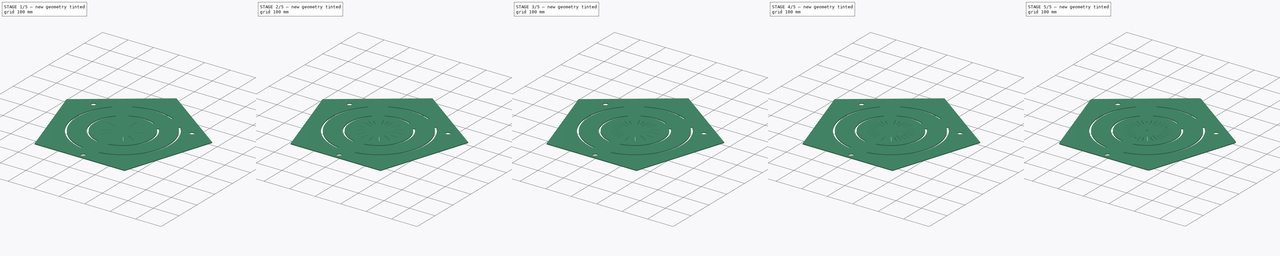
[diagram: build sequence overview — one tinted view per stage of 5, left to right]
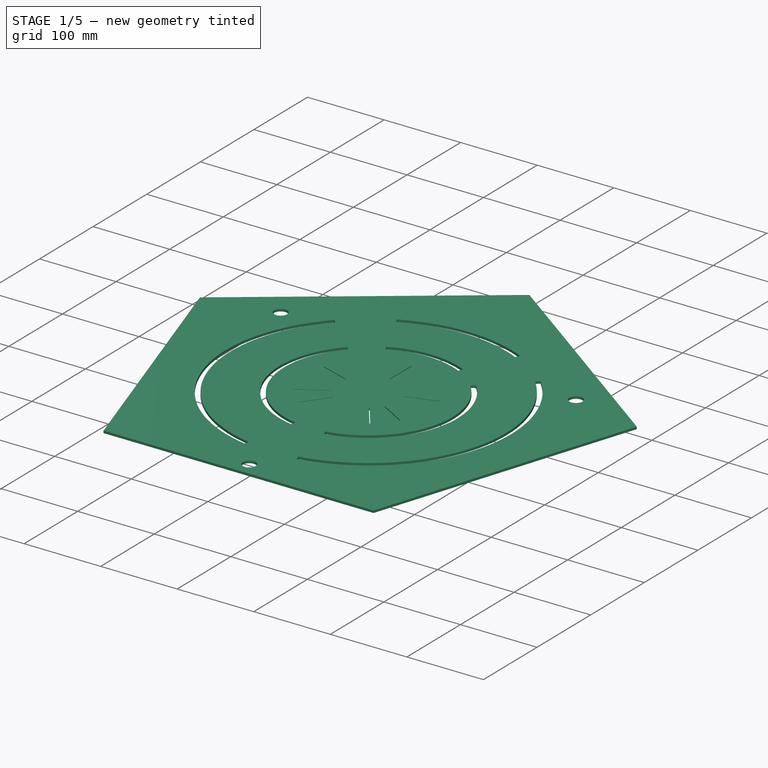
[diagram: stage 1 of 5 — iso view after this stage's code; geometry added in this stage tinted green]
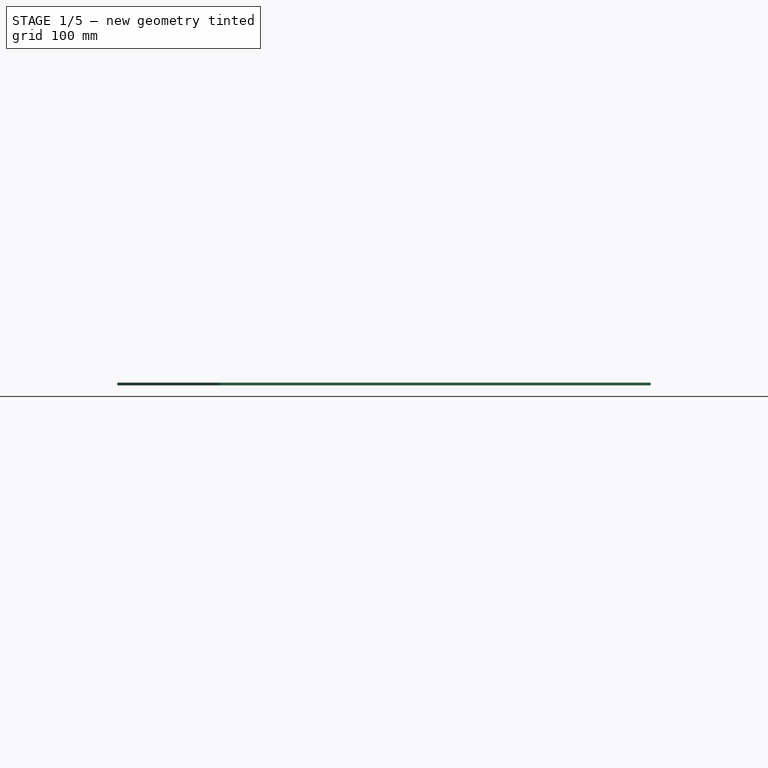
[diagram: stage 1 of 5 — front view after this stage's code; geometry added in this stage tinted green]
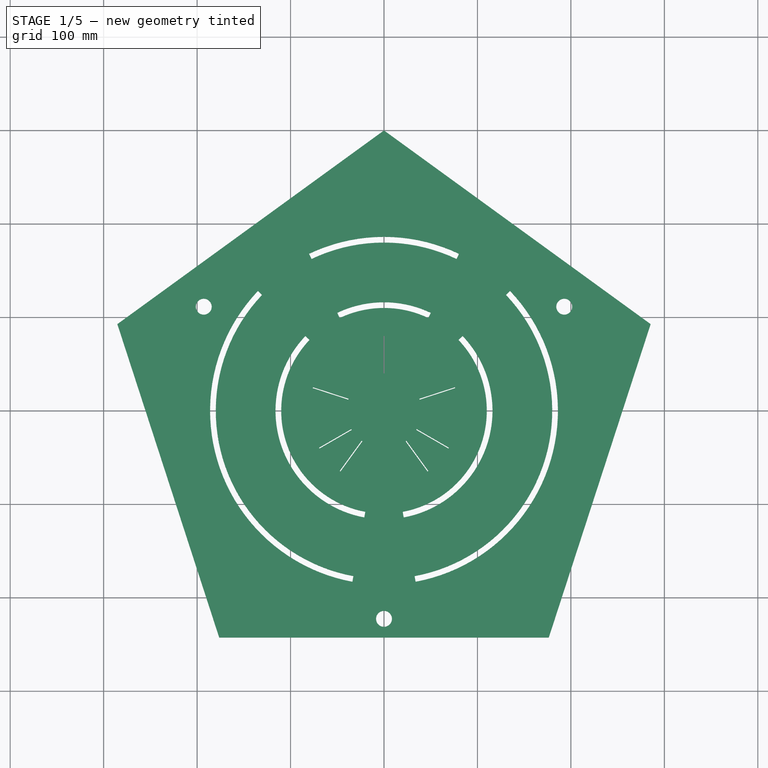
[diagram: stage 1 of 5 — top view after this stage's code; geometry added in this stage tinted green]
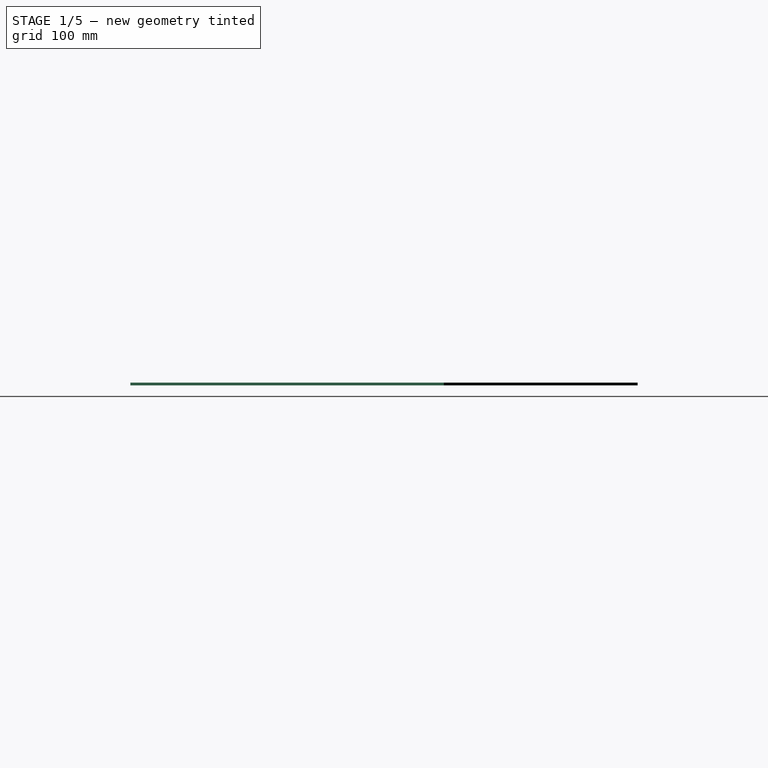
[diagram: stage 1 of 5 — right view after this stage's code; geometry added in this stage tinted green]
FCSTD DOCUMENT  (FreeCAD 0.19R24291 (Git))
Label: PlatformV3_wide_track
License: All rights reserved
LicenseURL: http://en.wikipedia.org/wiki/All_rights_reserved
objects: PartDesign::PolarPattern×15, Sketcher::SketchObject×4, PartDesign::Pocket×2, PartDesign::Fillet×2, PartDesign::Pad×1, PartDesign::Hole×1, PartDesign::Body×1
note: 32 computed .brp shape members not serialized (recipe doc carries the construction recipe); baked Part::Feature solids carry a one-line shape summary decoded from their .brp

FEATURE [Sketcher::SketchObject] Sketch
  FullyConstrained = true
  MapMode = 5
  Support = -> [XY_Plane]
  sketch-geometry (99):
    g0: GeomPoint X=0 Y=300 Z=0
    g1: LineSegment StartX=0 StartY=300 StartZ=0 EndX=-285.317 EndY=92.7051 EndZ=0
    g2: LineSegment StartX=-285.317 StartY=92.7051 StartZ=0 EndX=-176.336 EndY=-242.705 EndZ=0
    g3: LineSegment StartX=-176.336 StartY=-242.705 StartZ=0 EndX=176.336 EndY=-242.705 EndZ=0
    g4: LineSegment StartX=176.336 StartY=-242.705 StartZ=0 EndX=285.317 EndY=92.7051 EndZ=0
    g5: LineSegment StartX=285.317 StartY=92.7051 StartZ=0 EndX=0 EndY=300 EndZ=0
    g6: Circle CenterX=0 CenterY=0 CenterZ=0 NormalX=0 NormalY=0 NormalZ=1 AngleXU=0 Radius=300
    g7: LineSegment StartX=0 StartY=0 StartZ=0 EndX=-176.336 EndY=-242.705 EndZ=0
    g8: LineSegment StartX=0 StartY=0 StartZ=0 EndX=176.336 EndY=-242.705 EndZ=0
    g9: LineSegment StartX=0 StartY=0 StartZ=0 EndX=285.317 EndY=92.7051 EndZ=0
    g10: LineSegment StartX=0 StartY=0 StartZ=0 EndX=-285.317 EndY=92.7051 EndZ=0
    g11: LineSegment StartX=0 StartY=0 StartZ=0 EndX=0 EndY=300 EndZ=0
    g12: LineSegment StartX=0 StartY=0 StartZ=0 EndX=259.808 EndY=-150 EndZ=0
    g13: LineSegment StartX=0 StartY=0 StartZ=0 EndX=-259.808 EndY=-150 EndZ=0
    g14: LineSegment StartX=0 StartY=0 StartZ=0 EndX=0 EndY=-242.705 EndZ=0
    g15: LineSegment StartX=20 StartY=299.333 StartZ=0 EndX=20 EndY=-299.333 EndZ=0
    g16: LineSegment StartX=-20 StartY=299.333 StartZ=0 EndX=-20 EndY=-299.333 EndZ=0
    g17: GeomPoint X=0 Y=-222.705 Z=0
    g18: Circle CenterX=0 CenterY=-222.705 CenterZ=0 NormalX=0 NormalY=0 NormalZ=1 AngleXU=0 Radius=8.5
    g19: LineSegment StartX=0 StartY=-222.705 StartZ=0 EndX=192.868 EndY=111.353 EndZ=0
    g20: LineSegment StartX=192.868 StartY=111.353 StartZ=0 EndX=-192.868 EndY=111.353 EndZ=0
    g21: LineSegment StartX=-192.868 StartY=111.353 StartZ=0 EndX=0 EndY=-222.705 EndZ=0
    g22: Circle CenterX=0 CenterY=0 CenterZ=0 NormalX=0 NormalY=0 NormalZ=1 AngleXU=0 Radius=222.705
    g23: Circle CenterX=-192.868 CenterY=111.353 CenterZ=0 NormalX=0 NormalY=0 NormalZ=1 AngleXU=0 Radius=8.5
    g24: Circle CenterX=192.868 CenterY=111.353 CenterZ=0 NormalX=0 NormalY=0 NormalZ=1 AngleXU=0 Radius=8.5
    g25: Circle CenterX=0 CenterY=0 CenterZ=0 NormalX=0 NormalY=0 NormalZ=1 AngleXU=0 Radius=186.1
    g26: Circle CenterX=0 CenterY=0 CenterZ=0 NormalX=0 NormalY=0 NormalZ=1 AngleXU=0 Radius=180
    g27: Circle CenterX=0 CenterY=0 CenterZ=0 NormalX=0 NormalY=0 NormalZ=1 AngleXU=0 Radius=116.1
    g28: Circle CenterX=0 CenterY=0 CenterZ=0 NormalX=0 NormalY=0 NormalZ=1 AngleXU=0 Radius=110
    g29: LineSegment StartX=0 StartY=0 StartZ=0 EndX=-259.808 EndY=150 EndZ=0
    g30: LineSegment StartX=0 StartY=0 StartZ=0 EndX=259.808 EndY=150 EndZ=0
    g31: LineSegment StartX=-249.236 StartY=166.978 StartZ=0 EndX=269.225 EndY=-132.356 EndZ=0
    g32: LineSegment StartX=-269.225 StartY=132.356 StartZ=0 EndX=249.236 EndY=-166.978 EndZ=0
    g33: LineSegment StartX=249.236 StartY=166.978 StartZ=0 EndX=-269.225 EndY=-132.356 EndZ=0
    g34: LineSegment StartX=269.225 StartY=132.356 StartZ=0 EndX=-249.236 EndY=-166.978 EndZ=0
    g35: Circle CenterX=0 CenterY=0 CenterZ=0 NormalX=0 NormalY=0 NormalZ=1 AngleXU=0 Radius=242.705
    g36: LineSegment StartX=0 StartY=0 StartZ=0 EndX=-176.336 EndY=242.705 EndZ=0
    g37: LineSegment StartX=-192.115 StartY=230.417 StartZ=0 EndX=159.772 EndY=-253.915 EndZ=0
    g38: LineSegment StartX=-159.772 StartY=253.915 StartZ=0 EndX=192.115 EndY=-230.417 EndZ=0
    g39: Circle CenterX=-192.868 CenterY=111.353 CenterZ=0 NormalX=0 NormalY=0 NormalZ=1 AngleXU=0 Radius=3.05
    g40: Circle CenterX=192.868 CenterY=111.353 CenterZ=0 NormalX=0 NormalY=0 NormalZ=1 AngleXU=0 Radius=3.05
    g41: Circle CenterX=0 CenterY=-222.705 CenterZ=0 NormalX=0 NormalY=0 NormalZ=1 AngleXU=0 Radius=3.05
    g42: GeomPoint X=-79.7513 Y=75.7611 Z=0
    g43: LineSegment StartX=0 StartY=0 StartZ=0 EndX=-217.503 EndY=206.621 EndZ=0
    g44: LineSegment StartX=0 StartY=0 StartZ=0 EndX=-129.296 EndY=270.707 EndZ=0
    g45: GeomPoint X=-47.4086 Y=99.2594 Z=0
    g46: GeomPoint X=-20 Y=-108.167 Z=0
    g47: GeomPoint X=20 Y=-108.167 Z=0
    g48: LineSegment StartX=0 StartY=0 StartZ=0 EndX=-54.5455 EndY=-295 EndZ=0
    g49: LineSegment StartX=0 StartY=0 StartZ=0 EndX=54.5455 EndY=-295 EndZ=0
    g50: LineSegment StartX=0 StartY=0 StartZ=0 EndX=176.336 EndY=242.705 EndZ=0
    g51: LineSegment StartX=-192.115 StartY=-230.417 StartZ=0 EndX=159.772 EndY=253.915 EndZ=0
    g52: LineSegment StartX=-159.772 StartY=-253.915 StartZ=0 EndX=192.115 EndY=230.417 EndZ=0
    g53: GeomPoint X=47.4086 Y=99.2594 Z=0
    g54: GeomPoint X=79.7513 Y=75.7611 Z=0
    g55: LineSegment StartX=0 StartY=0 StartZ=0 EndX=129.296 EndY=270.707 EndZ=0
    g56: LineSegment StartX=0 StartY=0 StartZ=0 EndX=217.503 EndY=206.621 EndZ=0
    g57: GeomPoint X=-21.1091 Y=-114.165 Z=0
    g58: GeomPoint X=-84.1738 Y=79.9624 Z=0
    g59: ArcOfCircle CenterX=0 CenterY=0 CenterZ=0 NormalX=0 NormalY=0 NormalZ=1 AngleXU=0 Radius=110 StartAngle=2.38185 EndAngle=4.52955
    g60: ArcOfCircle CenterX=0 CenterY=0 CenterZ=0 NormalX=0 NormalY=0 NormalZ=1 AngleXU=0 Radius=116.1 StartAngle=2.38185 EndAngle=4.52955
    g61: LineSegment StartX=-84.1738 StartY=79.9624 StartZ=0 EndX=-79.7513 EndY=75.7611 EndZ=0
    g62: LineSegment StartX=-20 StartY=-108.167 StartZ=0 EndX=-21.1091 EndY=-114.165 EndZ=0
    g63: GeomPoint X=-32.7273 Y=-177 Z=0
    g64: GeomPoint X=-33.8364 Y=-182.998 Z=0
    g65: GeomPoint X=-134.925 Y=128.174 Z=0
    g66: GeomPoint X=-130.502 Y=123.973 Z=0
    g67: ArcOfCircle CenterX=0 CenterY=0 CenterZ=0 NormalX=0 NormalY=0 NormalZ=1 AngleXU=0 Radius=186.1 StartAngle=2.38185 EndAngle=4.52955
    g68: LineSegment StartX=-33.8364 StartY=-182.998 StartZ=0 EndX=-32.7273 EndY=-177 EndZ=0
    g69: ArcOfCircle CenterX=0 CenterY=0 CenterZ=0 NormalX=0 NormalY=0 NormalZ=1 AngleXU=0 Radius=180 StartAngle=2.38185 EndAngle=4.52955
    g70: LineSegment StartX=-134.925 StartY=128.174 StartZ=0 EndX=-130.502 EndY=123.973 EndZ=0
    g71: GeomPoint X=-50.0376 Y=104.764 Z=0
    g72: ArcOfCircle CenterX=0 CenterY=0 CenterZ=0 NormalX=0 NormalY=0 NormalZ=1 AngleXU=0 Radius=110 StartAngle=1.12521 EndAngle=2.01638
    g73: LineSegment StartX=-47.4086 StartY=99.2594 StartZ=0 EndX=-50.0376 EndY=104.764 EndZ=0
    g74: GeomPoint X=50.0376 Y=104.764 Z=0
    g75: ArcOfCircle CenterX=0 CenterY=0 CenterZ=0 NormalX=0 NormalY=0 NormalZ=1 AngleXU=0 Radius=116.1 StartAngle=1.12521 EndAngle=2.01638
    g76: LineSegment StartX=50.0376 StartY=104.764 StartZ=0 EndX=47.4086 EndY=99.2594 EndZ=0
    g77: GeomPoint X=-80.2067 Y=167.929 Z=0
    g78: GeomPoint X=80.2067 Y=167.929 Z=0
    g79: ArcOfCircle CenterX=0 CenterY=0 CenterZ=0 NormalX=0 NormalY=0 NormalZ=1 AngleXU=0 Radius=186.1 StartAngle=1.12521 EndAngle=2.01638
    g80: GeomPoint X=-77.5776 Y=162.424 Z=0
    g81: GeomPoint X=77.5776 Y=162.424 Z=0
    g82: ArcOfCircle CenterX=0 CenterY=0 CenterZ=0 NormalX=0 NormalY=0 NormalZ=1 AngleXU=0 Radius=180 StartAngle=1.12521 EndAngle=2.01638
    g83: LineSegment StartX=-77.5776 StartY=162.424 StartZ=0 EndX=-80.2067 EndY=167.929 EndZ=0
    g84: LineSegment StartX=77.5776 StartY=162.424 StartZ=0 EndX=80.2067 EndY=167.929 EndZ=0
    g85: GeomPoint X=21.1091 Y=-114.165 Z=0
    g86: GeomPoint X=84.1738 Y=79.9624 Z=0
    g87: ArcOfCircle CenterX=0 CenterY=0 CenterZ=0 NormalX=0 NormalY=0 NormalZ=1 AngleXU=0 Radius=110 StartAngle=4.89522 EndAngle=7.04293
    g88: ArcOfCircle CenterX=0 CenterY=0 CenterZ=0 NormalX=0 NormalY=0 NormalZ=1 AngleXU=0 Radius=116.1 StartAngle=4.89522 EndAngle=7.04293
    g89: LineSegment StartX=20 StartY=-108.167 StartZ=0 EndX=21.1091 EndY=-114.165 EndZ=0
    g90: LineSegment StartX=79.7513 StartY=75.7611 StartZ=0 EndX=84.1738 EndY=79.9624 EndZ=0
    g91: GeomPoint X=32.7273 Y=-177 Z=0
    g92: GeomPoint X=33.8364 Y=-182.998 Z=0
    g93: GeomPoint X=130.502 Y=123.973 Z=0
    g94: GeomPoint X=134.925 Y=128.174 Z=0
    g95: ArcOfCircle CenterX=0 CenterY=0 CenterZ=0 NormalX=0 NormalY=0 NormalZ=1 AngleXU=0 Radius=186.1 StartAngle=4.89522 EndAngle=7.04293
    g96: ArcOfCircle CenterX=0 CenterY=0 CenterZ=0 NormalX=0 NormalY=0 NormalZ=1 AngleXU=0 Radius=180 StartAngle=4.89522 EndAngle=7.04293
    g97: LineSegment StartX=32.7273 StartY=-177 StartZ=0 EndX=33.8364 EndY=-182.998 EndZ=0
    g98: LineSegment StartX=130.502 StartY=123.973 StartZ=0 EndX=134.925 EndY=128.174 EndZ=0
  constraints (242):
    c: PointOnObject(g0,g-2)
    c: DistanceY(g-1,g0) = 300
    c: Coincident(g1,g2)
    c: Coincident(g2,g3)
    c: Coincident(g3,g4)
    c: Coincident(g4,g5)
    c: Coincident(g5,g1)
    c: Equal(g1, g2-g5) x4
    c: PointOnObject(g1,g6)
    c: PointOnObject(g2,g6)
    c: PointOnObject(g3,g6)
    c: PointOnObject(g4,g6)
    c: PointOnObject(g5,g6)
    c: Coincident(g6,g-1)
    c: Coincident(g5,g0)
    c: Coincident(g7,g-1)
    c: Coincident(g7,g2)
    c: Coincident(g8,g-1)
    c: Coincident(g8,g3)
    c: Coincident(g9,g-1)
    c: Coincident(g9,g4)
    c: Coincident(g10,g-1)
    c: Coincident(g10,g1)
    c: Coincident(g11,g-1)
    c: Coincident(g11,g1)
    c: Coincident(g12,g-1)
    c: PointOnObject(g12,g6)
    c: Coincident(g13,g-1)
    c: PointOnObject(g13,g6)
    c: Angle(g12,g11) = 2.0944
    c: Angle(g11,g13) = 2.0944
    c: Coincident(g14,g-1)
    c: PointOnObject(g14,g3)
    c: Vertical(g14)
    c: PointOnObject(g15,g6)
    c: PointOnObject(g15,g6)
    c: Vertical(g15)
    c: PointOnObject(g16,g6)
    c: PointOnObject(g16,g6)
    c: Vertical(g16)
    c: Distance(g14,g16) = 20
    c: Distance(g14,g15) = 20
    c: PointOnObject(g17,g14)
    c: Distance(g17,g14) = 20
    c: Coincident(g18,g17)
    c: Diameter(g18) = 17
    c: Coincident(g19,g20)
    c: Coincident(g20,g21)
    c: Coincident(g21,g19)
    c: Equal(g19,g20)
    c: Equal(g19,g21)
    c: PointOnObject(g19,g22)
    c: PointOnObject(g20,g22)
    c: PointOnObject(g21,g22)
    c: Coincident(g22,g-1)
    c: Coincident(g21,g18)
    c: Coincident(g23,g20)
    c: Coincident(g24,g19)
    c: Diameter(g23) = 17
    c: Diameter(g24) = 17
    c: Coincident(g25,g-1)
    c: Coincident(g26,g-1)
    c: Coincident(g27,g-1)
    c: Coincident(g28,g-1)
    c: Diameter(g25) = 372.2
    c: Diameter(g26) = 360
    c: Diameter(g27) = 232.2
    c: Diameter(g28) = 220
    c: Coincident(g29,g-1)
    c: PointOnObject(g29,g6)
    c: Coincident(g30,g-1)
    c: PointOnObject(g30,g6)
    c: Angle(g30,g11) = 1.0472
    c: Angle(g11,g29) = 1.0472
    c: PointOnObject(g31,g6)
    c: PointOnObject(g31,g6)
    c: PointOnObject(g32,g6)
    c: PointOnObject(g32,g6)
    c: Parallel(g29,g32)
    c: Parallel(g29,g31)
    c: Distance(g29,g31) = 20
    c: Distance(g29,g32) = 20
    c: PointOnObject(g33,g6)
    c: PointOnObject(g33,g6)
    c: PointOnObject(g34,g6)
    c: PointOnObject(g34,g6)
    c: Parallel(g13,g33)
    c: Parallel(g13,g34)
    c: Distance(g13,g33) = 20
    c: Distance(g13,g34) = 20
    c: Coincident(g35,g-1)
    c: Tangent(g35,g1)
    c: Coincident(g36,g-1)
    c: PointOnObject(g36,g6)
    c: Angle(g36,g10) = 0.628319
    c: PointOnObject(g37,g6)
    c: PointOnObject(g37,g6)
    c: Parallel(g36,g37)
    c: Distance(g36,g37) = 20
    c: PointOnObject(g38,g6)
    c: PointOnObject(g38,g6)
    c: Parallel(g36,g38)
    c: Distance(g38,g36) = 20
    c: Coincident(g39,g23)
    c: Diameter(g39) = 6.1
    c: Coincident(g40,g24)
    c: Diameter(g40) = 6.1
    c: Coincident(g41,g18)
    c: Diameter(g41) = 6.1
    c: PointOnObject(g42,g28)
    c: PointOnObject(g42,g37)
    c: Coincident(g43,g-1)
    c: PointOnObject(g43,g6)
    c: PointOnObject(g42,g43)
    c: Coincident(g44,g-1)
    c: PointOnObject(g44,g6)
    c: PointOnObject(g45,g28)
    c: PointOnObject(g45,g38)
    c: PointOnObject(g45,g44)
    c: PointOnObject(g47,g28)
    c: PointOnObject(g46,g16)
    c: PointOnObject(g47,g15)
    c: Coincident(g48,g-1)
    c: PointOnObject(g48,g6)
    c: PointOnObject(g46,g48)
    c: Coincident(g49,g-1)
    c: PointOnObject(g49,g6)
    c: PointOnObject(g47,g49)
    c: Coincident(g50,g-1)
    c: PointOnObject(g50,g6)
    c: Angle(g50,g11) = 0.628319
    c: PointOnObject(g51,g6)
    c: PointOnObject(g51,g6)
    c: Parallel(g50,g51)
    c: Distance(g50,g51) = 20
    c: PointOnObject(g52,g6)
    c: PointOnObject(g52,g6)
    c: Parallel(g52,g50)
    c: Distance(g52,g50) = 20
    c: PointOnObject(g53,g28)
    c: PointOnObject(g54,g28)
    c: PointOnObject(g53,g51)
    c: PointOnObject(g54,g52)
    c: Coincident(g55,g-1)
    c: PointOnObject(g55,g6)
    c: Coincident(g56,g-1)
    c: PointOnObject(g56,g6)
    c: PointOnObject(g53,g55)
    c: PointOnObject(g54,g56)
    c: PointOnObject(g57,g27)
    c: PointOnObject(g57,g48)
    c: PointOnObject(g58,g43)
    c: Coincident(g59,g-1)
    c: Coincident(g59,g42)
    c: Coincident(g59,g46)
    c: Coincident(g60,g59)
    c: Coincident(g60,g57)
    c: Coincident(g60,g58)
    c: Coincident(g61,g60)
    c: Coincident(g61,g59)
    c: Coincident(g62,g59)
    c: Coincident(g62,g60)
    c: PointOnObject(g63,g26)
    c: PointOnObject(g64,g25)
    c: PointOnObject(g63,g48)
    c: PointOnObject(g64,g48)
    c: PointOnObject(g65,g43)
    c: Coincident(g67,g59)
    c: Coincident(g67,g65)
    c: Coincident(g67,g64)
    c: Coincident(g68,g67)
    c: Coincident(g68,g63)
    c: Coincident(g69,g59)
    c: Coincident(g69,g66)
    c: Coincident(g69,g68)
    c: PointOnObject(g69,g43)
    c: Coincident(g70,g67)
    c: Coincident(g70,g69)
    c: PointOnObject(g71,g27)
    c: PointOnObject(g71,g44)
    c: Coincident(g72,g59)
    c: Coincident(g72,g45)
    c: PointOnObject(g72,g51)
    c: Coincident(g73,g72)
    c: Coincident(g73,g71)
    c: PointOnObject(g74,g27)
    c: PointOnObject(g74,g55)
    c: Coincident(g75,g59)
    c: Coincident(g75,g73)
    c: PointOnObject(g75,g55)
    c: Coincident(g76,g75)
    c: Coincident(g76,g72)
    c: PointOnObject(g77,g25)
    c: PointOnObject(g78,g25)
    c: PointOnObject(g77,g44)
    c: PointOnObject(g78,g55)
    c: Coincident(g79,g59)
    c: PointOnObject(g79,g55)
    c: PointOnObject(g79,g44)
    c: PointOnObject(g79,g25)
    c: PointOnObject(g80,g26)
    c: PointOnObject(g81,g26)
    c: PointOnObject(g80,g44)
    c: PointOnObject(g81,g55)
    c: Coincident(g82,g59)
    c: Coincident(g82,g80)
    c: PointOnObject(g82,g55)
    c: Coincident(g83,g82)
    c: Coincident(g83,g79)
    c: Coincident(g84,g82)
    c: Coincident(g84,g79)
    c: PointOnObject(g85,g27)
    c: PointOnObject(g85,g49)
    c: PointOnObject(g86,g27)
    c: PointOnObject(g86,g56)
    c: Coincident(g87,g59)
    c: Coincident(g87,g47)
    c: PointOnObject(g87,g52)
    c: Coincident(g88,g59)
    c: Coincident(g88,g85)
    c: PointOnObject(g88,g56)
    c: Coincident(g89,g87)
    c: Coincident(g89,g88)
    c: Coincident(g90,g87)
    c: Coincident(g90,g88)
    c: PointOnObject(g91,g26)
    c: PointOnObject(g92,g25)
    c: PointOnObject(g91,g49)
    c: PointOnObject(g92,g49)
    c: PointOnObject(g94,g25)
    c: PointOnObject(g94,g56)
    c: Coincident(g95,g59)
    c: Coincident(g95,g92)
    c: PointOnObject(g95,g56)
    c: Coincident(g96,g59)
    c: Coincident(g96,g93)
    c: Coincident(g96,g91)
    c: Coincident(g97,g96)
    c: Coincident(g97,g95)
    c: PointOnObject(g96,g56)
    c: Coincident(g98,g96)
    c: Coincident(g98,g95)
FEATURE [PartDesign::Pad] Pad
  Direction = (1,1,1)
  Length = 3
  Length2 = 100
  Profile = -> Sketch
  Type = 0
FEATURE [Sketcher::SketchObject] Sketch001
  FullyConstrained = true
  MapMode = 5
  Placement = pos=(0,0,3) rot=(0,0,1;0rad)
  Support = -> [Pad]
  sketch-geometry (15):
    g0: Circle CenterX=0 CenterY=0 CenterZ=0 NormalX=0 NormalY=0 NormalZ=1 AngleXU=0 Radius=125
    g1: Circle CenterX=0 CenterY=0 CenterZ=0 NormalX=0 NormalY=0 NormalZ=1 AngleXU=0 Radius=70
    g2: Circle CenterX=0 CenterY=0 CenterZ=0 NormalX=0 NormalY=0 NormalZ=1 AngleXU=0 Radius=40
    g3: Circle CenterX=0 CenterY=0 CenterZ=0 NormalX=0 NormalY=0 NormalZ=1 AngleXU=0 Radius=80
    g4: Circle CenterX=0 CenterY=0 CenterZ=0 NormalX=0 NormalY=0 NormalZ=1 AngleXU=0 Radius=300
    g5: LineSegment StartX=-0.5 StartY=300 StartZ=0 EndX=-0.5 EndY=-300 EndZ=0
    g6: LineSegment StartX=0.5 StartY=300 StartZ=0 EndX=0.5 EndY=-300 EndZ=0
    g7: GeomPoint X=-0.5 Y=39.9969 Z=0
    g8: GeomPoint X=0.5 Y=39.9969 Z=0
    g9: GeomPoint X=-0.5 Y=79.9984 Z=0
    g10: GeomPoint X=0.5 Y=79.9984 Z=0
    g11: LineSegment StartX=-0.5 StartY=39.9969 StartZ=0 EndX=-0.5 EndY=79.9984 EndZ=0
    g12: LineSegment StartX=-0.5 StartY=79.9984 StartZ=0 EndX=0.5 EndY=79.9984 EndZ=0
    g13: LineSegment StartX=0.5 StartY=79.9984 StartZ=0 EndX=0.5 EndY=39.9969 EndZ=0
    g14: LineSegment StartX=0.5 StartY=39.9969 StartZ=0 EndX=-0.5 EndY=39.9969 EndZ=0
  constraints (34):
    c: Coincident(g0,g-1)
    c: Coincident(g1,g-1)
    c: Diameter(g0) = 250
    c: Diameter(g1) = 140
    c: Coincident(g2,g-1)
    c: Diameter(g2) = 80
    c: Coincident(g3,g-1)
    c: Diameter(g3) = 160
    c: Coincident(g4,g-1)
    c: Diameter(g4) = 600
    c: PointOnObject(g5,g4)
    c: PointOnObject(g5,g4)
    c: Vertical(g5)
    c: PointOnObject(g6,g4)
    c: PointOnObject(g6,g4)
    c: Vertical(g6)
    c: Distance(g-1,g5) = 0.5
    c: Distance(g-1,g6) = 0.5
    c: PointOnObject(g7,g2)
    c: PointOnObject(g8,g2)
    c: PointOnObject(g7,g5)
    c: PointOnObject(g8,g6)
    c: PointOnObject(g9,g3)
    c: PointOnObject(g10,g3)
    c: PointOnObject(g9,g5)
    c: PointOnObject(g10,g6)
    c: Coincident(g11,g7)
    c: Coincident(g11,g9)
    c: Coincident(g11,g12)
    c: Coincident(g12,g10)
    c: Coincident(g12,g13)
    c: Coincident(g13,g8)
    c: Coincident(g13,g14)
    c: Coincident(g14,g11)
FEATURE [PartDesign::Pocket] Pocket
  BaseFeature = -> Pad
  Length = 3
  Length2 = 100
  Profile = -> Sketch001
  Type = 0
FEATURE [PartDesign::PolarPattern] PolarPattern
  Angle = 360
  Axis = -> Sketch001 [N_Axis]
  BaseFeature = -> Pocket
  Occurrences = 5
  Originals = -> [Pocket]
FEATURE [PartDesign::PolarPattern] PolarPattern001
  Angle = 360
  Axis = -> Sketch001 [N_Axis]
  BaseFeature = -> PolarPattern
  Occurrences = 3
  Originals = -> [Pocket]
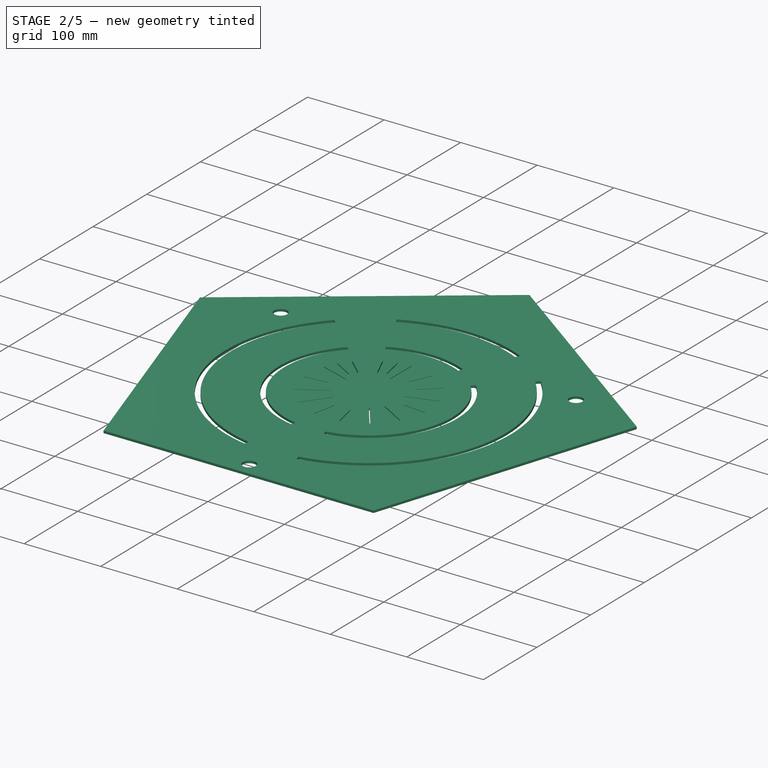
[diagram: stage 2 of 5 — iso view after this stage's code; geometry added in this stage tinted green]
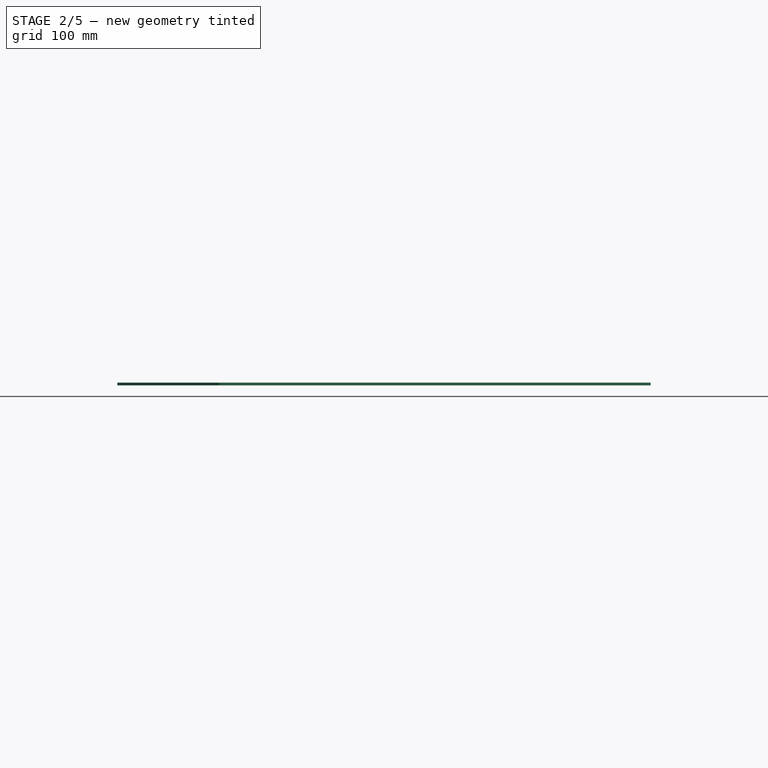
[diagram: stage 2 of 5 — front view after this stage's code; geometry added in this stage tinted green]
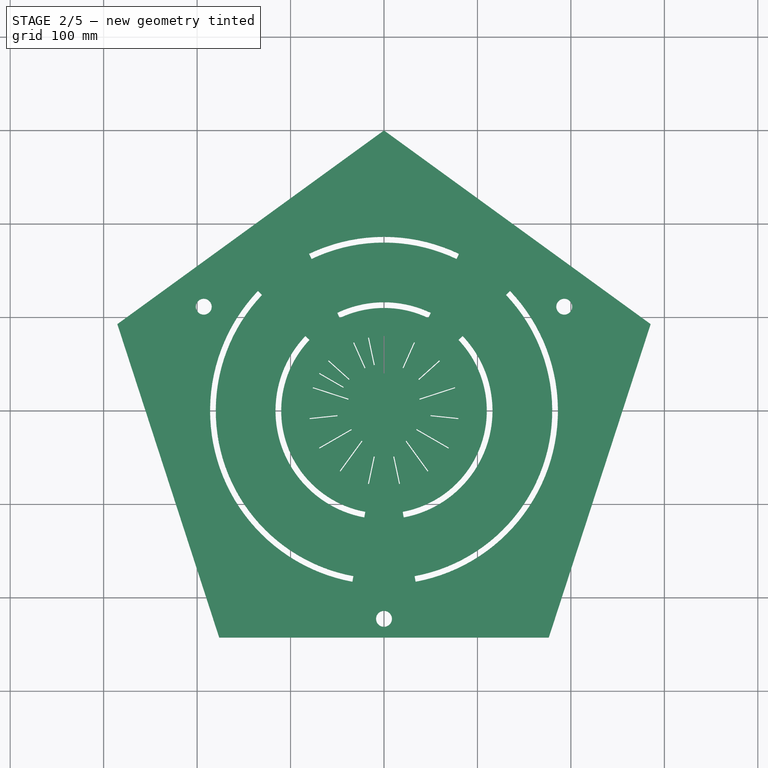
[diagram: stage 2 of 5 — top view after this stage's code; geometry added in this stage tinted green]
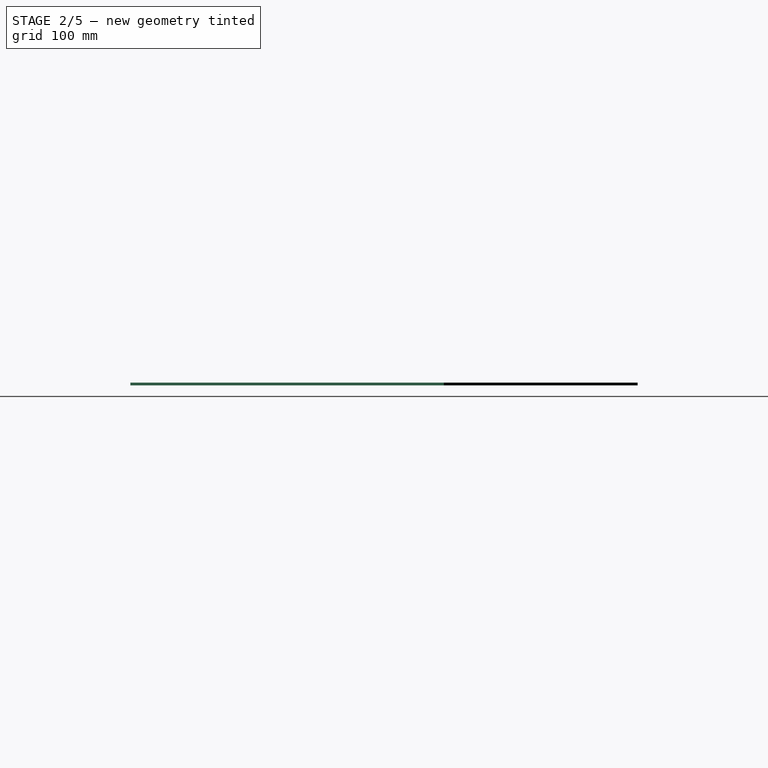
[diagram: stage 2 of 5 — right view after this stage's code; geometry added in this stage tinted green]
FEATURE [Sketcher::SketchObject] Sketch003
  FullyConstrained = true
  MapMode = 5
  Placement = pos=(0,0,3) rot=(0,0,1;0rad)
  Support = -> [Pad]
  sketch-geometry (15):
    g0: Circle CenterX=0 CenterY=0 CenterZ=0 NormalX=0 NormalY=0 NormalZ=1 AngleXU=0 Radius=125
    g1: Circle CenterX=0 CenterY=0 CenterZ=0 NormalX=0 NormalY=0 NormalZ=1 AngleXU=0 Radius=50
    g2: Circle CenterX=0 CenterY=0 CenterZ=0 NormalX=0 NormalY=0 NormalZ=1 AngleXU=0 Radius=40
    g3: Circle CenterX=0 CenterY=0 CenterZ=0 NormalX=0 NormalY=0 NormalZ=1 AngleXU=0 Radius=80
    g4: Circle CenterX=0 CenterY=0 CenterZ=0 NormalX=0 NormalY=0 NormalZ=1 AngleXU=0 Radius=300
    g5: LineSegment StartX=-0.5 StartY=300 StartZ=0 EndX=-0.5 EndY=-300 EndZ=0
    g6: LineSegment StartX=0.5 StartY=300 StartZ=0 EndX=0.5 EndY=-300 EndZ=0
    g7: GeomPoint X=-0.5 Y=79.9984 Z=0
    g8: GeomPoint X=0.5 Y=79.9984 Z=0
    g9: GeomPoint X=-0.5 Y=49.9975 Z=0
    g10: GeomPoint X=0.5 Y=49.9975 Z=0
    g11: LineSegment StartX=-0.5 StartY=49.9975 StartZ=0 EndX=-0.5 EndY=79.9984 EndZ=0
    g12: LineSegment StartX=-0.5 StartY=79.9984 StartZ=0 EndX=0.5 EndY=79.9984 EndZ=0
    g13: LineSegment StartX=0.5 StartY=79.9984 StartZ=0 EndX=0.5 EndY=49.9975 EndZ=0
    g14: LineSegment StartX=0.5 StartY=49.9975 StartZ=0 EndX=-0.5 EndY=49.9975 EndZ=0
  constraints (34):
    c: Coincident(g0,g-1)
    c: Coincident(g1,g-1)
    c: Diameter(g0) = 250
    c: Diameter(g1) = 100
    c: Coincident(g2,g-1)
    c: Diameter(g2) = 80
    c: Coincident(g3,g-1)
    c: Diameter(g3) = 160
    c: Coincident(g4,g-1)
    c: Diameter(g4) = 600
    c: PointOnObject(g5,g4)
    c: PointOnObject(g5,g4)
    c: Vertical(g5)
    c: PointOnObject(g6,g4)
    c: PointOnObject(g6,g4)
    c: Vertical(g6)
    c: Distance(g-1,g5) = 0.5
    c: Distance(g-1,g6) = 0.5
    c: PointOnObject(g7,g3)
    c: PointOnObject(g8,g3)
    c: PointOnObject(g7,g5)
    c: PointOnObject(g8,g6)
    c: PointOnObject(g9,g1)
    c: PointOnObject(g10,g1)
    c: PointOnObject(g9,g5)
    c: PointOnObject(g10,g6)
    c: Coincident(g11,g9)
    c: Coincident(g11,g7)
    c: Coincident(g11,g12)
    c: Coincident(g12,g8)
    c: Coincident(g12,g13)
    c: Coincident(g13,g10)
    c: Coincident(g13,g14)
    c: Coincident(g14,g11)
FEATURE [PartDesign::Pocket] Pocket001
  BaseFeature = -> PolarPattern001
  Length = 3
  Length2 = 100
  Profile = -> Sketch003
  Type = 0
FEATURE [PartDesign::PolarPattern] PolarPattern002
  Angle = 360
  Axis = -> Sketch003 [N_Axis]
  BaseFeature = -> Pocket001
  Occurrences = 15
  Originals = -> [Pocket001]
FEATURE [PartDesign::PolarPattern] PolarPattern003
  Angle = 12
  Axis = -> Sketch003 [N_Axis]
  BaseFeature = -> PolarPattern002
  Occurrences = 2
  Originals = -> [Pocket001]
FEATURE [PartDesign::PolarPattern] PolarPattern004
  Angle = 60
  Axis = -> Sketch003 [N_Axis]
  BaseFeature = -> PolarPattern003
  Occurrences = 2
  Originals = -> [Pocket001]
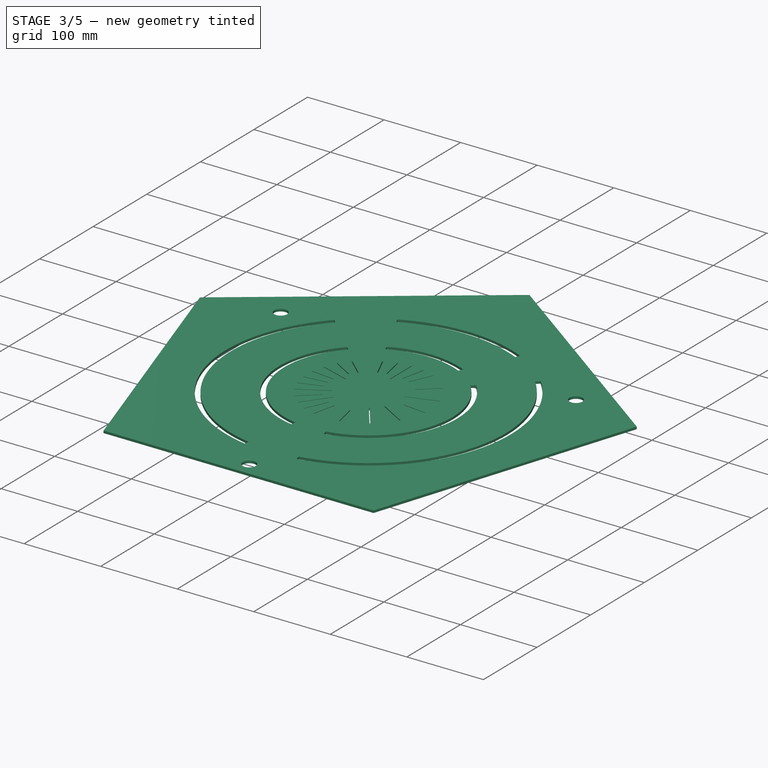
[diagram: stage 3 of 5 — iso view after this stage's code; geometry added in this stage tinted green]
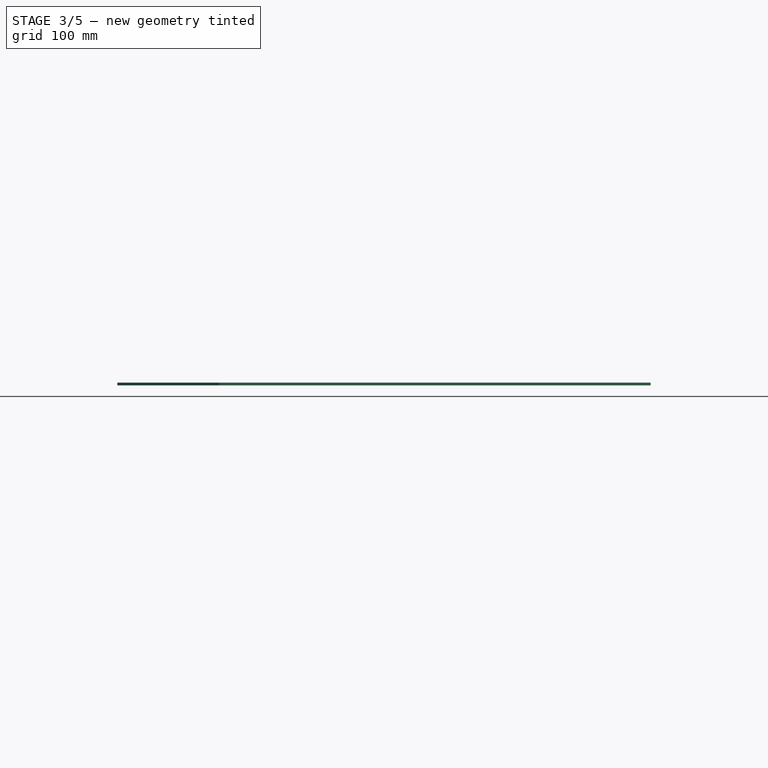
[diagram: stage 3 of 5 — front view after this stage's code; geometry added in this stage tinted green]
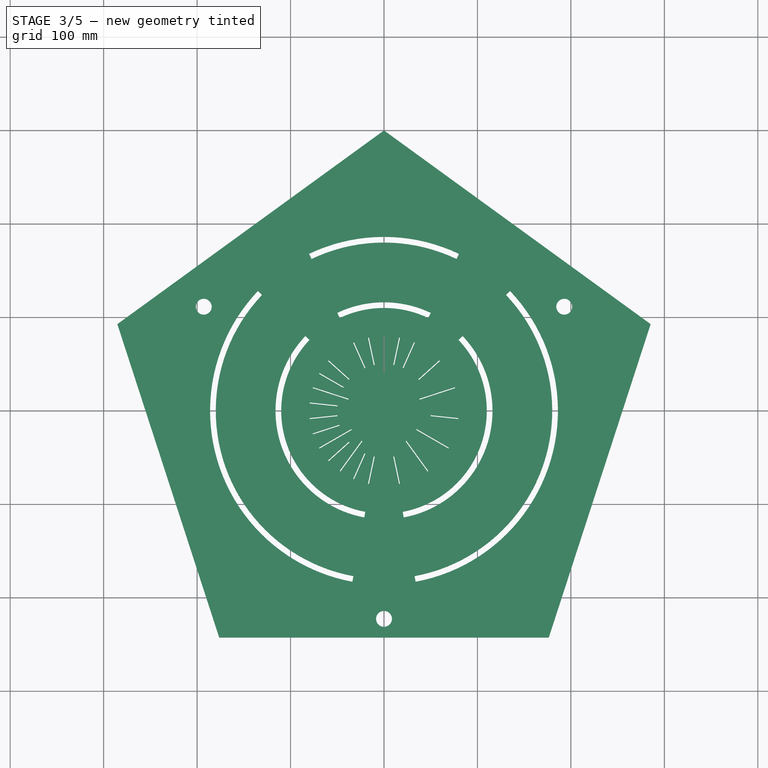
[diagram: stage 3 of 5 — top view after this stage's code; geometry added in this stage tinted green]
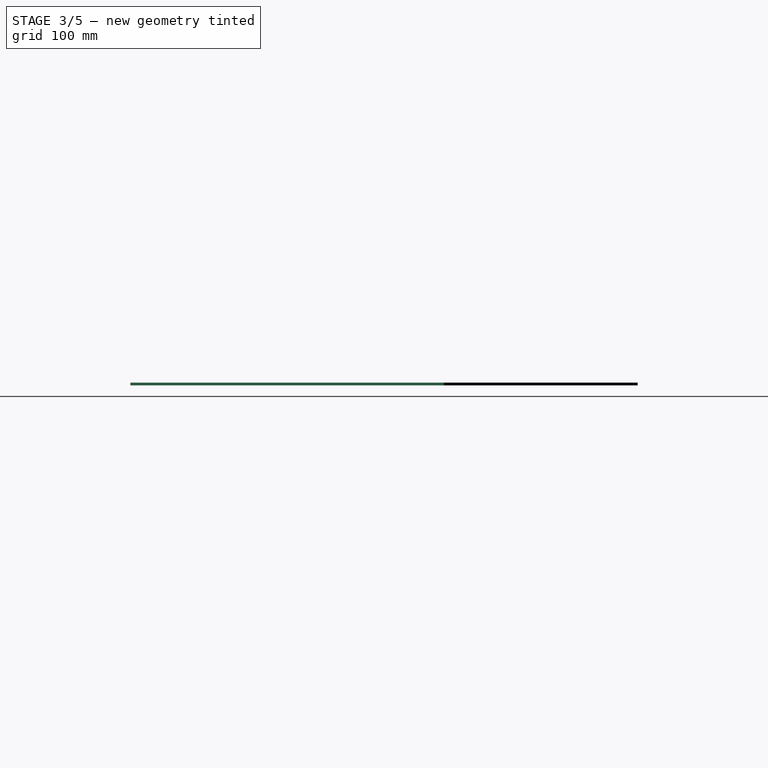
[diagram: stage 3 of 5 — right view after this stage's code; geometry added in this stage tinted green]
FEATURE [PartDesign::PolarPattern] PolarPattern005
  Angle = 84
  Axis = -> Sketch003 [N_Axis]
  BaseFeature = -> PolarPattern004
  Occurrences = 2
  Originals = -> [Pocket001]
FEATURE [PartDesign::PolarPattern] PolarPattern006
  Angle = 108
  Axis = -> Sketch003 [N_Axis]
  BaseFeature = -> PolarPattern005
  Occurrences = 2
  Originals = -> [Pocket001]
FEATURE [PartDesign::PolarPattern] PolarPattern007
  Angle = 132
  Axis = -> Sketch003 [N_Axis]
  BaseFeature = -> PolarPattern006
  Occurrences = 2
  Originals = -> [Pocket001]
FEATURE [PartDesign::PolarPattern] PolarPattern008
  Angle = 156
  Axis = -> Sketch003 [N_Axis]
  BaseFeature = -> PolarPattern007
  Occurrences = 2
  Originals = -> [Pocket001]
FEATURE [PartDesign::PolarPattern] PolarPattern009
  Angle = 348
  Axis = -> Sketch003 [N_Axis]
  BaseFeature = -> PolarPattern008
  Occurrences = 2
  Originals = -> [Pocket001]
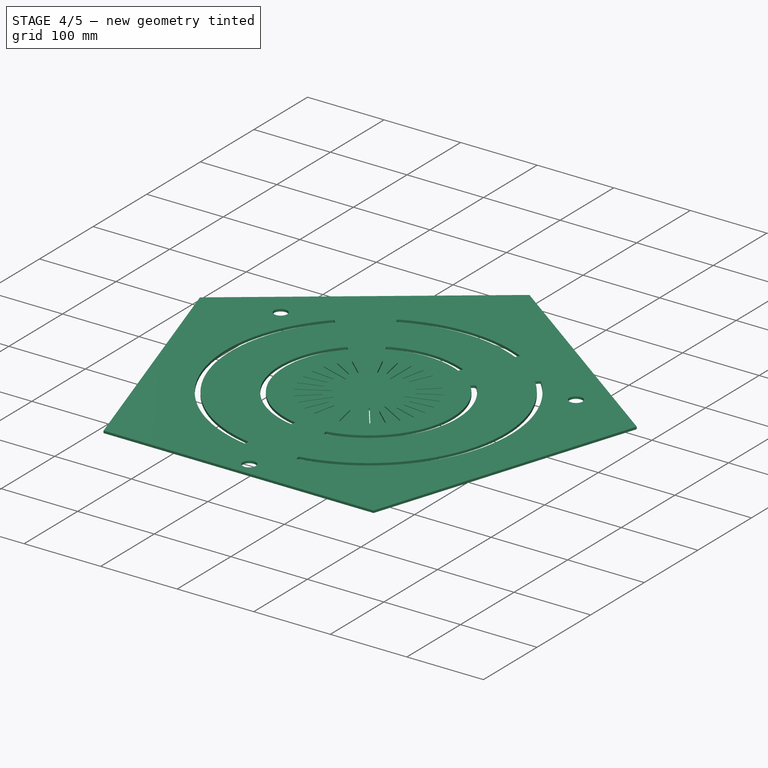
[diagram: stage 4 of 5 — iso view after this stage's code; geometry added in this stage tinted green]
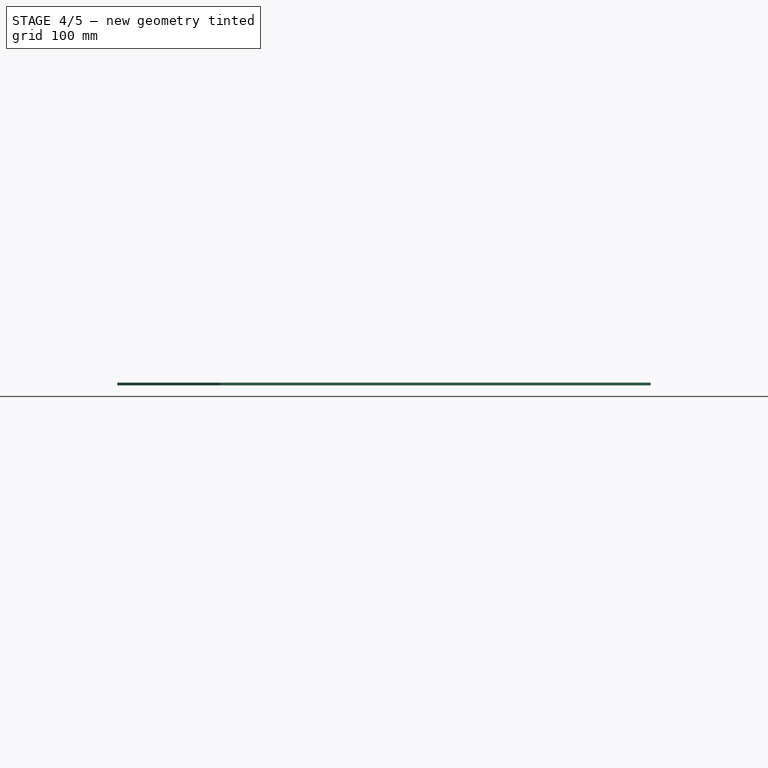
[diagram: stage 4 of 5 — front view after this stage's code; geometry added in this stage tinted green]
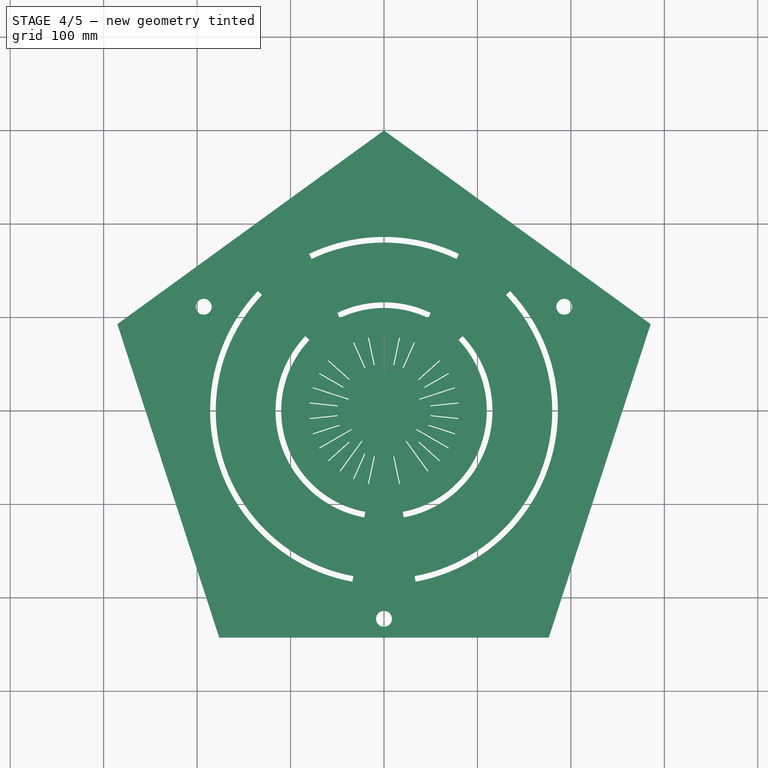
[diagram: stage 4 of 5 — top view after this stage's code; geometry added in this stage tinted green]
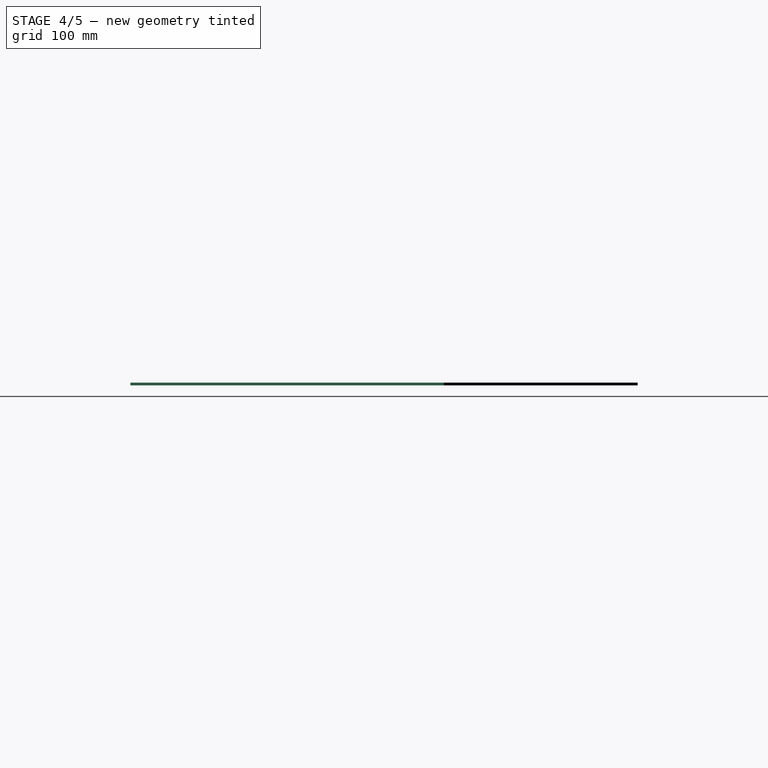
[diagram: stage 4 of 5 — right view after this stage's code; geometry added in this stage tinted green]
FEATURE [PartDesign::PolarPattern] PolarPattern010
  Angle = 300
  Axis = -> Sketch003 [N_Axis]
  BaseFeature = -> PolarPattern009
  Occurrences = 2
  Originals = -> [Pocket001]
FEATURE [PartDesign::PolarPattern] PolarPattern011
  Angle = 276
  Axis = -> Sketch003 [N_Axis]
  BaseFeature = -> PolarPattern010
  Occurrences = 2
  Originals = -> [Pocket001]
FEATURE [PartDesign::PolarPattern] PolarPattern012
  Angle = 252
  Axis = -> Sketch003 [N_Axis]
  BaseFeature = -> PolarPattern011
  Occurrences = 2
  Originals = -> [Pocket001]
FEATURE [PartDesign::PolarPattern] PolarPattern013
  Angle = 228
  Axis = -> Sketch003 [N_Axis]
  BaseFeature = -> PolarPattern012
  Occurrences = 2
  Originals = -> [Pocket001]
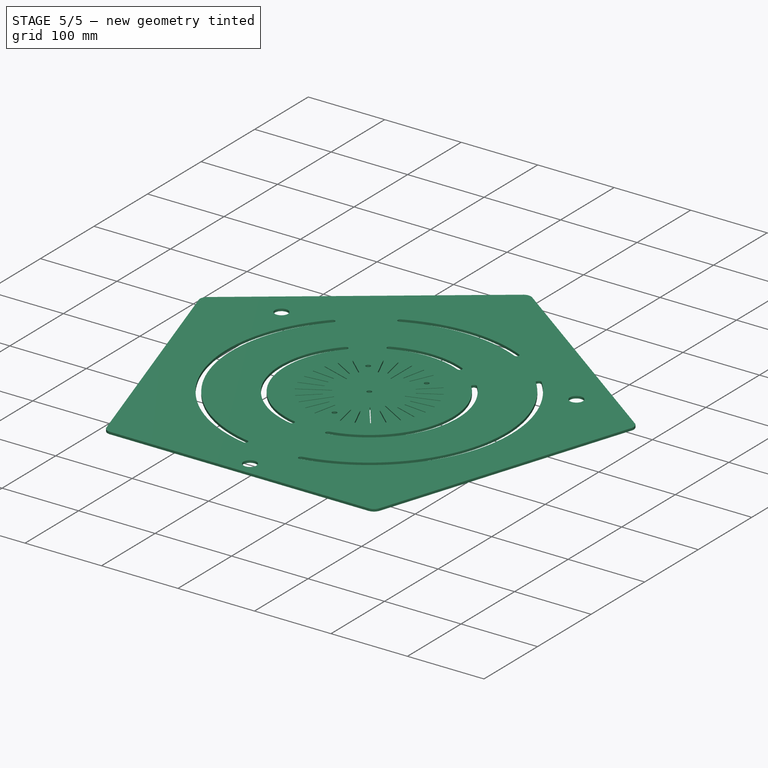
[diagram: stage 5 of 5 — iso view after this stage's code; geometry added in this stage tinted green]
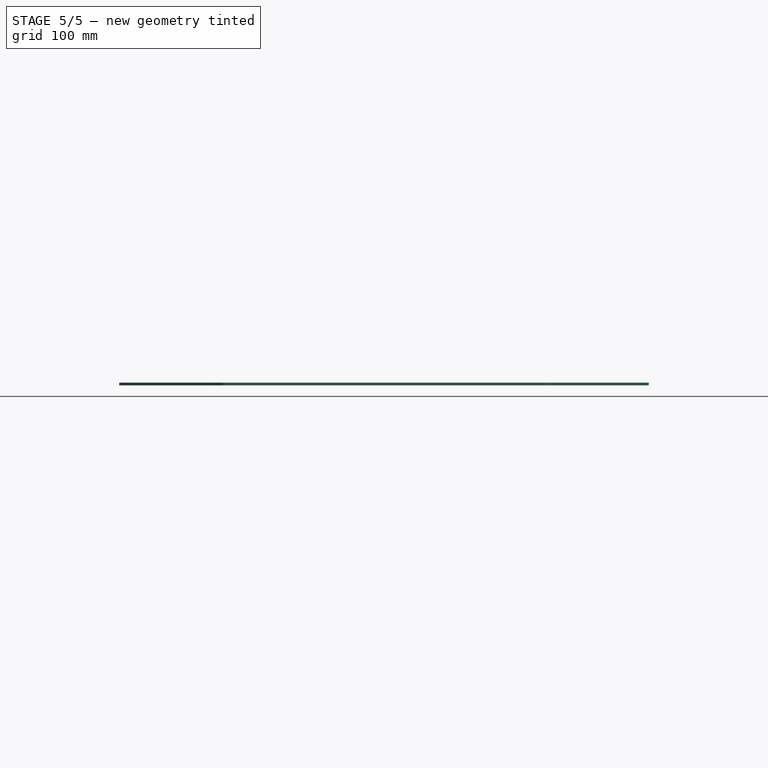
[diagram: stage 5 of 5 — front view after this stage's code; geometry added in this stage tinted green]
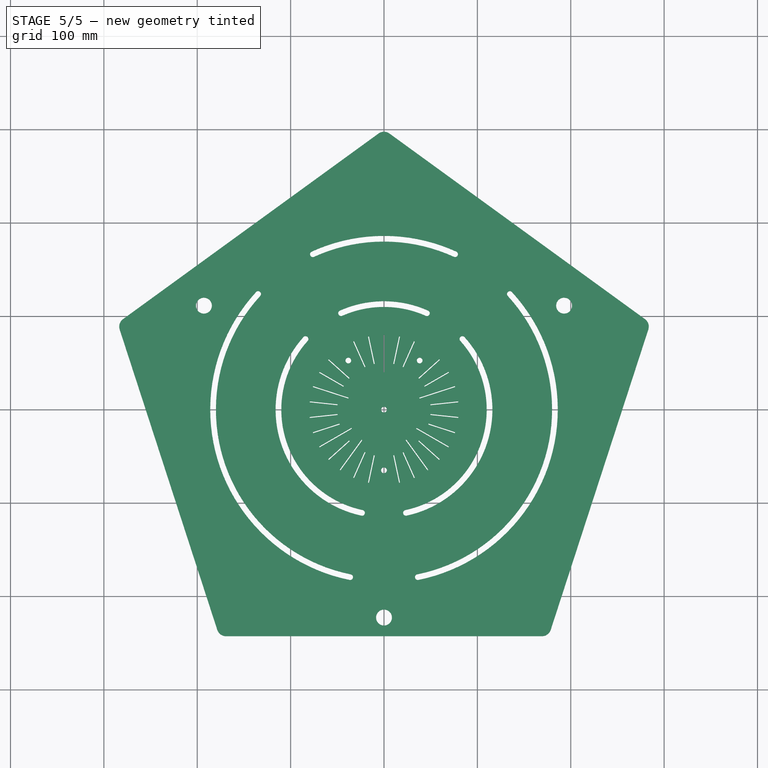
[diagram: stage 5 of 5 — top view after this stage's code; geometry added in this stage tinted green]
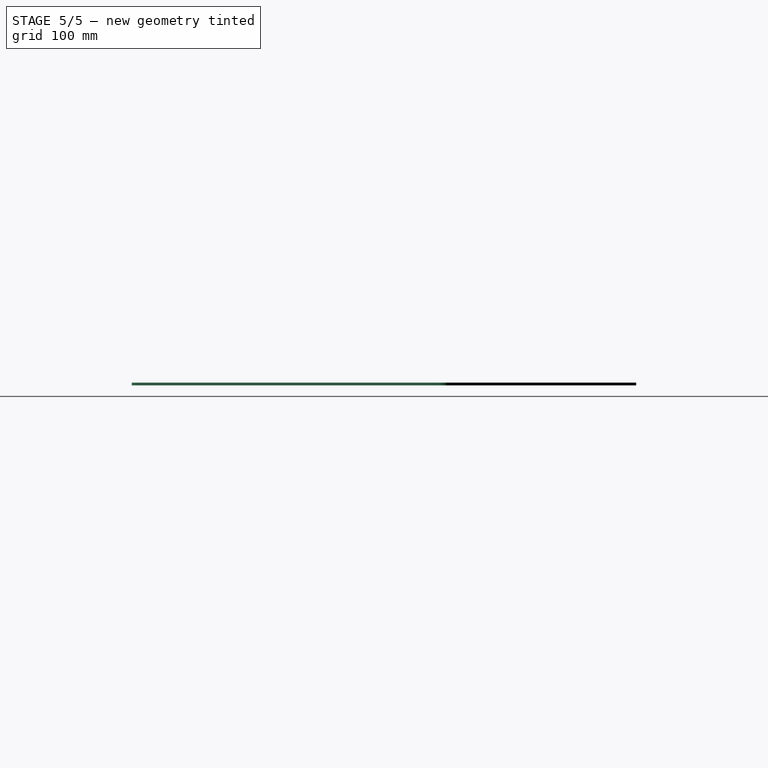
[diagram: stage 5 of 5 — right view after this stage's code; geometry added in this stage tinted green]
FEATURE [PartDesign::PolarPattern] PolarPattern014
  Angle = 204
  Axis = -> Sketch003 [N_Axis]
  BaseFeature = -> PolarPattern013
  Occurrences = 2
  Originals = -> [Pocket001]
FEATURE [Sketcher::SketchObject] Sketch004
  FullyConstrained = true
  MapMode = 5
  Placement = pos=(0,0,3) rot=(0,0,1;0rad)
  Support = -> [PolarPattern014]
  sketch-geometry (13):
    g0: LineSegment StartX=-150 StartY=100 StartZ=0 EndX=150 EndY=100 EndZ=0
    g1: LineSegment StartX=150 StartY=100 StartZ=0 EndX=150 EndY=-100 EndZ=0
    g2: LineSegment StartX=150 StartY=-100 StartZ=0 EndX=-150 EndY=-100 EndZ=0
    g3: LineSegment StartX=-150 StartY=-100 StartZ=0 EndX=-150 EndY=100 EndZ=0
    g4: Circle CenterX=0 CenterY=0 CenterZ=0 NormalX=0 NormalY=0 NormalZ=1 AngleXU=0 Radius=300
    g5: LineSegment StartX=0 StartY=0 StartZ=0 EndX=-176.336 EndY=242.705 EndZ=0
    g6: LineSegment StartX=0 StartY=0 StartZ=0 EndX=176.336 EndY=242.705 EndZ=0
    g7: LineSegment StartX=0 StartY=0 StartZ=0 EndX=0 EndY=-300 EndZ=0
    g8: Circle CenterX=0 CenterY=0 CenterZ=0 NormalX=0 NormalY=0 NormalZ=1 AngleXU=0 Radius=65
    g9: Circle CenterX=-38.206 CenterY=52.5861 CenterZ=0 NormalX=0 NormalY=0 NormalZ=1 AngleXU=0 Radius=3.05
    g10: Circle CenterX=38.206 CenterY=52.5861 CenterZ=0 NormalX=0 NormalY=0 NormalZ=1 AngleXU=0 Radius=3.05
    g11: Circle CenterX=0 CenterY=-65 CenterZ=0 NormalX=0 NormalY=0 NormalZ=1 AngleXU=0 Radius=3.05
    g12: Circle CenterX=0 CenterY=0 CenterZ=0 NormalX=0 NormalY=0 NormalZ=1 AngleXU=0 Radius=3.05
  constraints (36):
    c: Coincident(g0,g1)
    c: Coincident(g1,g2)
    c: Coincident(g2,g3)
    c: Coincident(g3,g0)
    c: Horizontal(g0)
    c: Horizontal(g2)
    c: Vertical(g1)
    c: Vertical(g3)
    c: DistanceX(g0,g0) = 300
    c: DistanceY(g3,g3) = 200
    c: Distance(g-1,g2) = 100
    c: Distance(g-1,g1) = 150
    c: Coincident(g4,g-1)
    c: Diameter(g4) = 600
    c: Coincident(g5,g-1)
    c: PointOnObject(g5,g4)
    c: Coincident(g6,g-1)
    c: PointOnObject(g6,g4)
    c: Coincident(g7,g-1)
    c: PointOnObject(g7,g4)
    c: Vertical(g7)
    c: Angle(g6,g-2) = 0.628319
    c: Angle(g-2,g5) = 0.628319
    c: Coincident(g8,g-1)
    c: Diameter(g8) = 130
    c: PointOnObject(g9,g8)
    c: PointOnObject(g10,g8)
    c: PointOnObject(g11,g8)
    c: PointOnObject(g9,g5)
    c: PointOnObject(g10,g6)
    c: PointOnObject(g11,g7)
    c: Diameter(g9) = 6.1
    c: Diameter(g10) = 6.1
    c: Diameter(g11) = 6.1
    c: Coincident(g12,g-1)
    c: Diameter(g12) = 6.1
FEATURE [PartDesign::Hole] Hole
  BaseFeature = -> PolarPattern014
  Depth = 25
  DepthType = 1
  Diameter = 6.1
  DrillForDepth = false
  DrillPoint = 1
  DrillPointAngle = 118
  HoleCutCountersinkAngle = 90
  HoleCutCustomValues = false
  HoleCutDepth = 0
  HoleCutDiameter = 0
  HoleCutType = 0
  ModelActualThread = false
  Profile = -> Sketch004
  Tapered = false
  TaperedAngle = 90
  ThreadAngle = 0
  ThreadClass = 0
  ThreadCutOffInner = 0
  ThreadCutOffOuter = 0
  ThreadDirection = 0
  ThreadFit = 0
  ThreadPitch = 0
  ThreadSize = 0
  ThreadType = 0
  Threaded = false
FEATURE [PartDesign::Fillet] Fillet
  Base = -> Hole [Edge428,Edge427,Edge377,Edge379,Edge378,Edge376,Edge425,Edge426,Edge324,Edge382,Edge383,Edge325,Edge381,Edge323,Edge322,Edge380,Edge466,Edge470,Edge472,Edge468,Edge467,Edge471,Edge473,Edge469]
  BaseFeature = -> Hole
  Radius = 3
  SupportTransform = false
FEATURE [PartDesign::Fillet] Fillet001
  Base = -> Fillet [Edge200,Edge199,Edge202,Edge204,Edge206]
  BaseFeature = -> Fillet
  Radius = 10
  SupportTransform = false
FEATURE [PartDesign::Body] Body
  Group = -> [Sketch,Pad,Sketch001,Pocket,PolarPattern,PolarPattern001,Sketch003,Pocket001,PolarPattern002,PolarPattern003,PolarPattern004,PolarPattern005,PolarPattern006,PolarPattern007,PolarPattern008,PolarPattern009,PolarPattern010,PolarPattern011,PolarPattern012,PolarPattern013,PolarPattern014,Sketch004,Hole,Fillet,Fillet001]
  Origin = -> Origin
  Tip = -> Fillet001
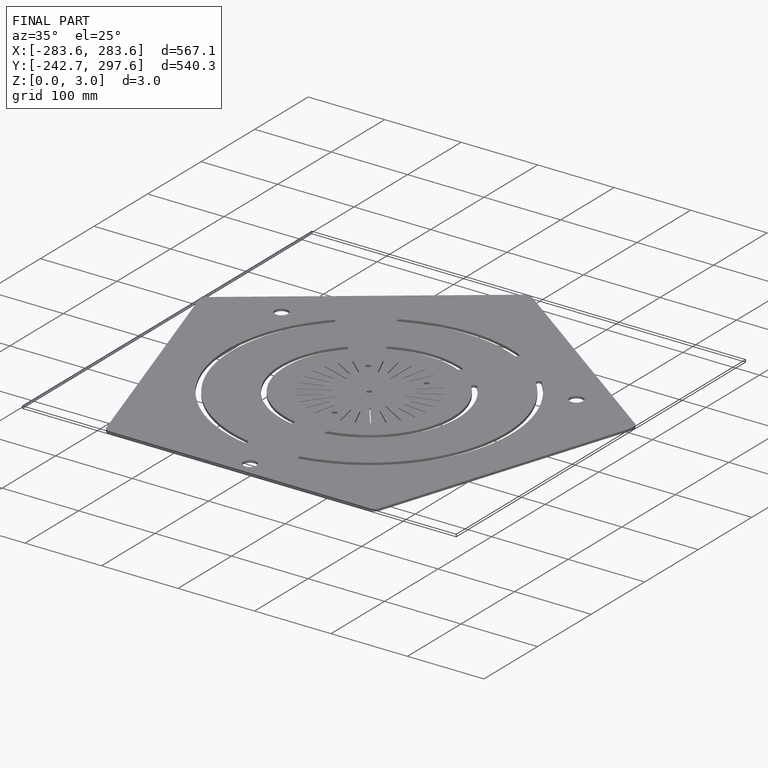
[diagram: finished part — iso view with bounding-box wireframe]
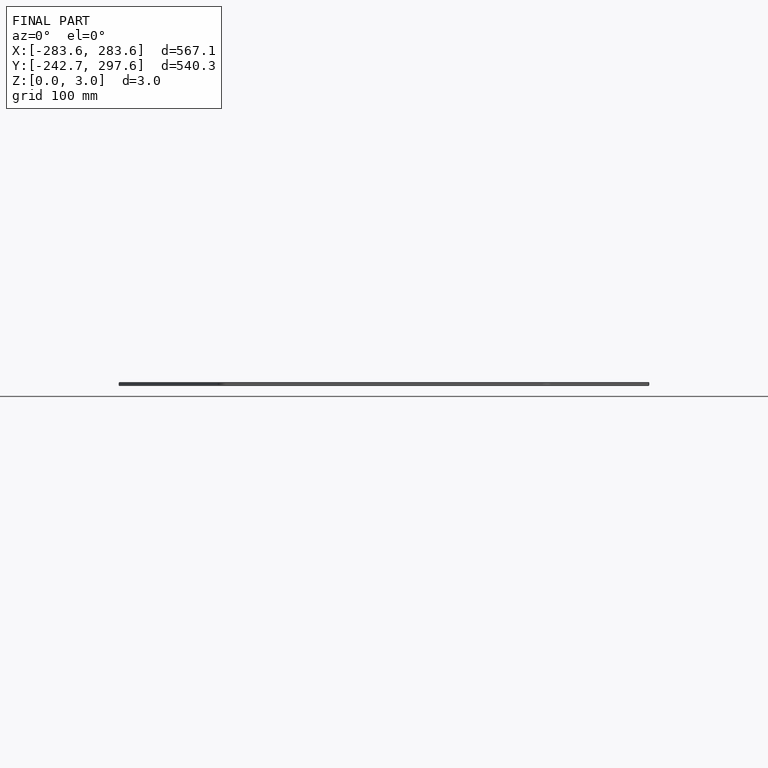
[diagram: finished part — front view with bounding-box wireframe]
